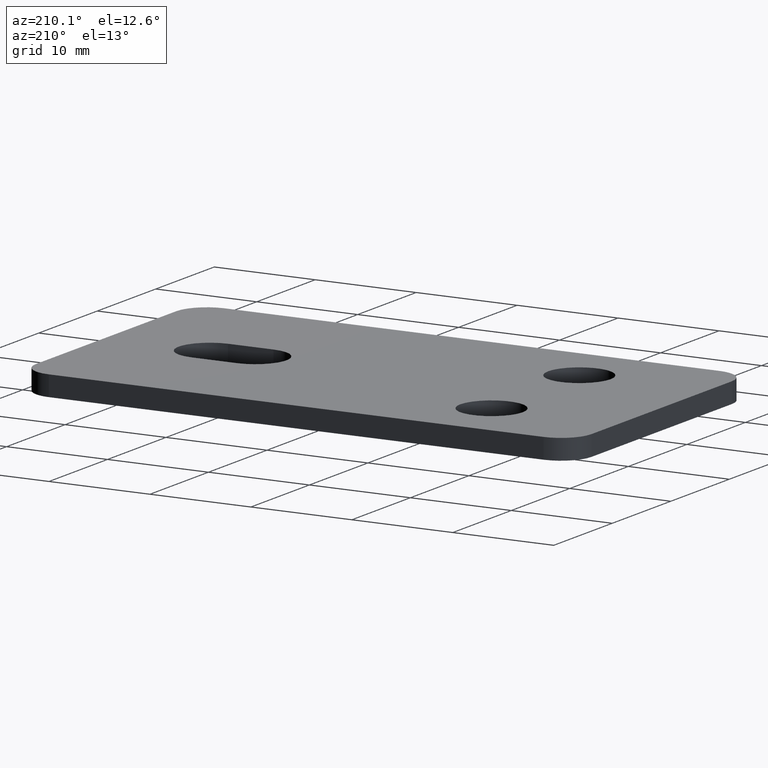
[diagram: clean part render]
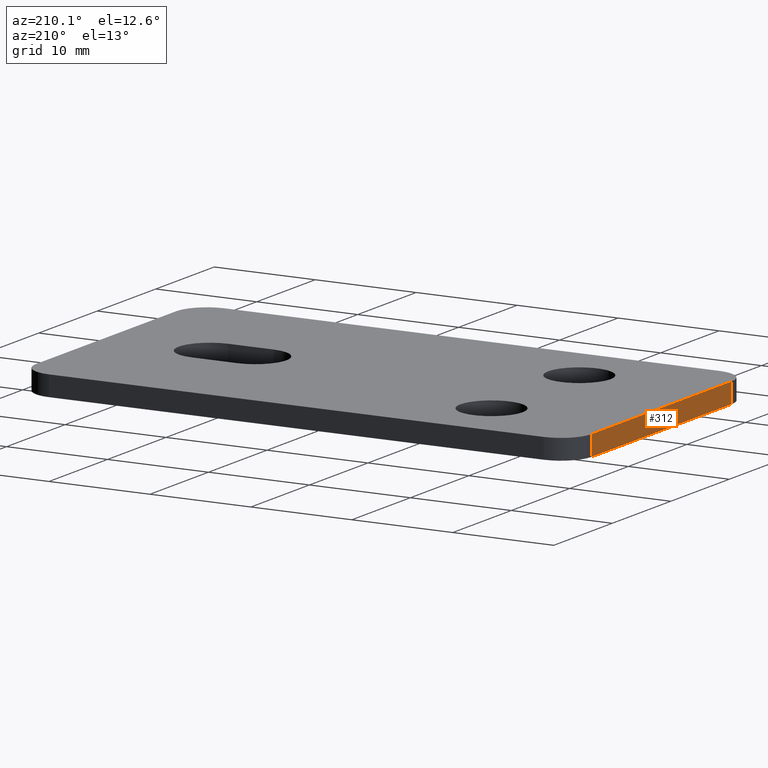
[diagram: same view with one face highlighted and labeled with its STEP entity id]
A machine part, auxiliary view. The second image highlights one B-rep face of the part: STEP entity #312.
In plain terms, the highlighted planar face has unit normal (-1, -0, 0).
Its self-contained STEP definition (entity closure, byte-faithful):
#23=PLANE('',#354);
#34=FACE_OUTER_BOUND('',#50,.T.);
#50=EDGE_LOOP('',(#231,#232,#233,#234));
#76=LINE('',#506,#102);
#77=LINE('',#509,#103);
#78=LINE('',#511,#104);
#79=LINE('',#512,#105);
#102=VECTOR('',#410,10.);
#103=VECTOR('',#413,10.);
#104=VECTOR('',#414,10.);
#105=VECTOR('',#415,10.);
#145=VERTEX_POINT('',#499);
#148=VERTEX_POINT('',#504);
#149=VERTEX_POINT('',#508);
#150=VERTEX_POINT('',#510);
#182=EDGE_CURVE('',#148,#145,#76,.T.);
#183=EDGE_CURVE('',#149,#148,#77,.T.);
#184=EDGE_CURVE('',#150,#149,#78,.T.);
#185=EDGE_CURVE('',#145,#150,#79,.T.);
#231=ORIENTED_EDGE('',*,*,#182,.F.);
#232=ORIENTED_EDGE('',*,*,#183,.F.);
#233=ORIENTED_EDGE('',*,*,#184,.F.);
#234=ORIENTED_EDGE('',*,*,#185,.F.);
#312=ADVANCED_FACE('',(#34),#23,.T.);
#354=AXIS2_PLACEMENT_3D('',#507,#411,#412);
#410=DIRECTION('',(0.,0.,1.));
#411=DIRECTION('center_axis',(-1.,-2.96059473233375E-16,0.));
#412=DIRECTION('ref_axis',(2.96059473233375E-16,-1.,0.));
#413=DIRECTION('',(-2.96059473233375E-16,1.,0.));
#414=DIRECTION('',(0.,0.,-1.));
#415=DIRECTION('',(2.96059473233375E-16,-1.,0.));
#499=CARTESIAN_POINT('',(-27.5,12.,1.));
#504=CARTESIAN_POINT('',(-27.5,12.,-1.));
#506=CARTESIAN_POINT('',(-27.5,12.,0.));
#507=CARTESIAN_POINT('Origin',(-27.5,15.,0.));
#508=CARTESIAN_POINT('',(-27.5,-12.,-1.));
#509=CARTESIAN_POINT('',(-27.5,-15.,-1.));
#510=CARTESIAN_POINT('',(-27.5,-12.,1.));
#511=CARTESIAN_POINT('',(-27.5,-12.,0.));
#512=CARTESIAN_POINT('',(-27.5,-15.,1.));